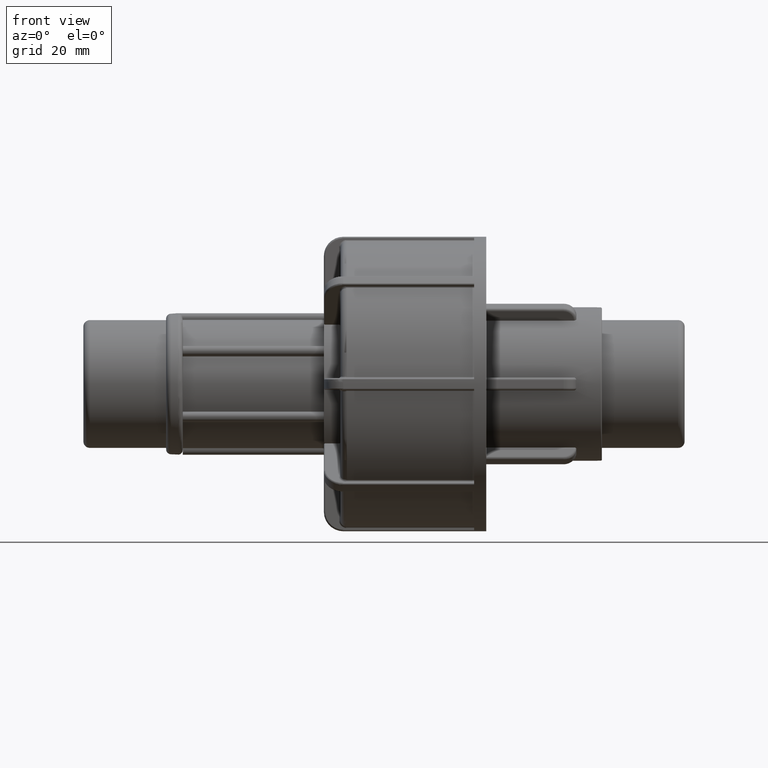
[diagram: clean part render]
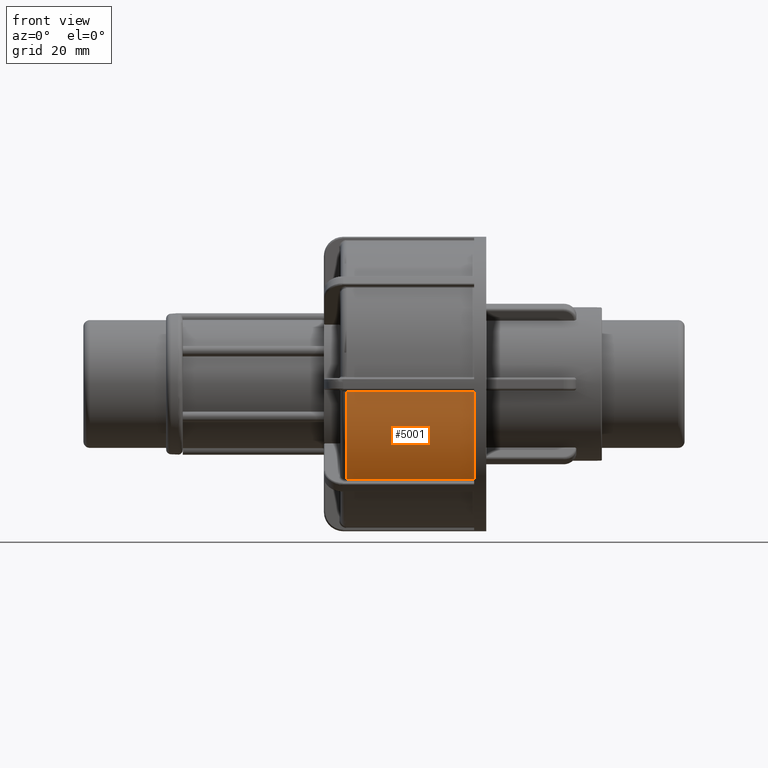
[diagram: same view with one face highlighted and labeled with its STEP entity id]
A machine part, front view. The second image highlights one B-rep face of the part: STEP entity #5001.
In plain terms, the highlighted cylindrical surface (partial cylindrical patch) has radius 29.3425 mm, axis along (1, 0, 0).
Its self-contained STEP definition (entity closure, byte-faithful):
#462=FACE_OUTER_BOUND('',#769,.T.);
#769=EDGE_LOOP('',(#4501,#4502,#4503,#4504));
#1087=LINE('',#8411,#1413);
#1108=LINE('',#8674,#1434);
#1413=VECTOR('',#6324,26.15295);
#1434=VECTOR('',#6413,26.15295);
#1726=CIRCLE('',#5304,29.3425);
#1860=CIRCLE('',#5563,29.3425);
#2131=VERTEX_POINT('',#8395);
#2132=VERTEX_POINT('',#8408);
#2136=VERTEX_POINT('',#8419);
#2161=VERTEX_POINT('',#8672);
#2723=EDGE_CURVE('',#2132,#2131,#1087,.T.);
#2729=EDGE_CURVE('',#2136,#2132,#1726,.T.);
#2774=EDGE_CURVE('',#2161,#2136,#1108,.T.);
#3077=EDGE_CURVE('',#2131,#2161,#1860,.T.);
#4501=ORIENTED_EDGE('',*,*,#2723,.F.);
#4502=ORIENTED_EDGE('',*,*,#2729,.F.);
#4503=ORIENTED_EDGE('',*,*,#2774,.F.);
#4504=ORIENTED_EDGE('',*,*,#3077,.F.);
#4721=CYLINDRICAL_SURFACE('',#5562,29.3425);
#5001=ADVANCED_FACE('',(#462),#4721,.T.);
#5304=AXIS2_PLACEMENT_3D('',#8421,#6334,#6335);
#5562=AXIS2_PLACEMENT_3D('',#10001,#6999,#7000);
#5563=AXIS2_PLACEMENT_3D('',#10002,#7001,#7002);
#6324=DIRECTION('',(-1.,0.,0.));
#6334=DIRECTION('center_axis',(1.,0.,0.));
#6335=DIRECTION('ref_axis',(0.,0.,-1.));
#6413=DIRECTION('',(1.,0.,0.));
#6999=DIRECTION('center_axis',(1.,0.,0.));
#7000=DIRECTION('ref_axis',(0.,1.,0.));
#7001=DIRECTION('center_axis',(-1.,0.,0.));
#7002=DIRECTION('ref_axis',(0.,-1.,1.83697019872103E-16));
#8395=CARTESIAN_POINT('',(-69.37795,-21.7798441429886,-19.662672640237));
#8408=CARTESIAN_POINT('',(-43.225,-21.7798441429886,-19.662672640237));
#8411=CARTESIAN_POINT('',(-56.9625,-21.7798441429886,-19.662672640237));
#8419=CARTESIAN_POINT('',(-43.225,-29.3042846468561,-1.49706632653062));
#8421=CARTESIAN_POINT('Origin',(-43.225,0.,0.));
#8672=CARTESIAN_POINT('',(-69.37795,-29.3042846468561,-1.49706632653062));
#8674=CARTESIAN_POINT('',(-56.9625,-29.3042846468561,-1.49706632653062));
#10001=CARTESIAN_POINT('Origin',(-56.9625,0.,0.));
#10002=CARTESIAN_POINT('Origin',(-69.37795,0.,0.));